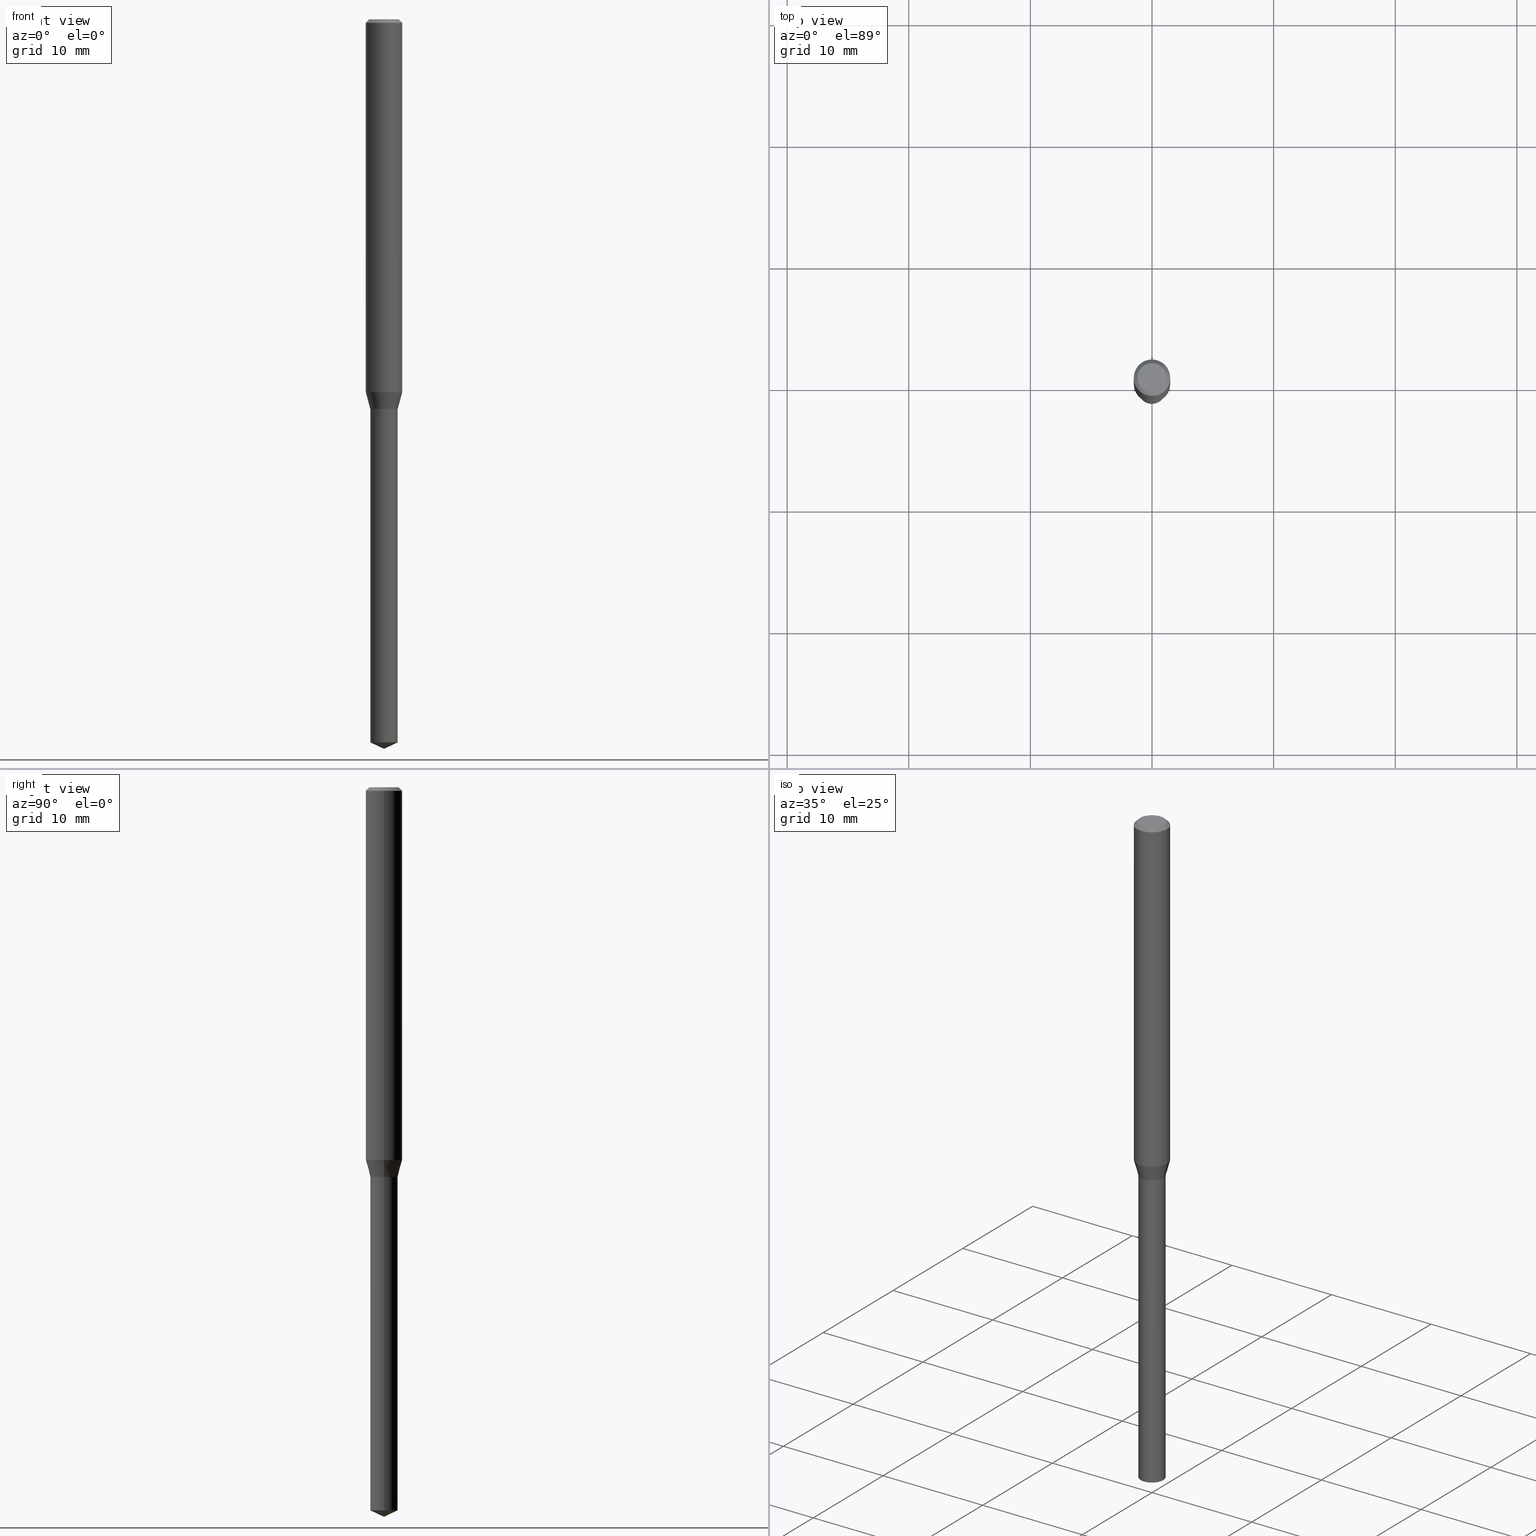
[diagram: canonical four-view strip — front | top / right | iso, engineering-drawing reading convention]
A machine part, canonical four-view strip (front | top / right | iso — engineering-drawing reading convention). The complete STEP part file that produces these views, byte-faithful:
ISO-10303-21;
HEADER;
FILE_DESCRIPTION (( 'STEP AP203' ),
    '1' );
FILE_NAME ('08380.STEP',
    '2024-04-24T14:44:57',
    ( '' ),
    ( '' ),
    'SwSTEP 2.0',
    'SolidWorks 2023',
    '' );
FILE_SCHEMA (( 'CONFIG_CONTROL_DESIGN' ));
ENDSEC;

DATA;
#1 = DIRECTION ( 'NONE',  ( -1.000000000000000000, 6.982962677686265922E-15, -4.876176775795935793E-29 ) ) ;
#2 = VERTEX_POINT ( 'NONE', #42 ) ;
#3 = EDGE_CURVE ( 'NONE', #76, #490, #270, .T. ) ;
#4 = CARTESIAN_POINT ( 'NONE',  ( 3.118950915408523626E-29, -4.453035299560548797E-15, -1.275400000000000311 ) ) ;
#5 = VERTEX_POINT ( 'NONE', #460 ) ;
#6 = DIRECTION ( 'NONE',  ( 1.000000000000000000, -6.982962677686266711E-15, 0.000000000000000000 ) ) ;
#7 = ORIENTED_EDGE ( 'NONE', *, *, #439, .T. ) ;
#8 = DIRECTION ( 'NONE',  ( -2.445468806185136597E-29, 3.491481338843145583E-15, 1.000000000000000000 ) ) ;
#9 = DIRECTION ( 'NONE',  ( -2.445468806185136877E-29, 3.491481338843145188E-15, 1.000000000000000000 ) ) ;
#10 = DIRECTION ( 'NONE',  ( -2.445468806185136597E-29, 3.491481338843145583E-15, 1.000000000000000000 ) ) ;
#11 = ADVANCED_FACE ( 'NONE', ( #200 ), #452, .T. ) ;
#12 = CARTESIAN_POINT ( 'NONE',  ( 3.118950915408523626E-29, -4.453035299560548797E-15, -1.275400000000000311 ) ) ;
#13 = FACE_OUTER_BOUND ( 'NONE', #225, .T. ) ;
#14 = CONICAL_SURFACE ( 'NONE', #274, 84.42940631927434936, 1.134464013796316006 ) ;
#15 = AXIS2_PLACEMENT_3D ( 'NONE', #352, #10, #151 ) ;
#16 = CARTESIAN_POINT ( 'NONE',  ( 0.04379999999999999866, -4.758889064843207266E-15, -1.275400000000000311 ) ) ;
#17 = MECHANICAL_CONTEXT ( 'NONE', #349, 'mechanical' ) ;
#18 = DIRECTION ( 'NONE',  ( -2.445468806185136597E-29, 3.491481338843145583E-15, 1.000000000000000000 ) ) ;
#19 = COORDINATED_UNIVERSAL_TIME_OFFSET ( 5, 0, .BEHIND. ) ;
#20 = DIRECTION ( 'NONE',  ( 1.000000000000000000, -6.982962677686269077E-15, 0.000000000000000000 ) ) ;
#21 = PERSON_AND_ORGANIZATION_ROLE ( 'creator' ) ;
#22 = AXIS2_PLACEMENT_3D ( 'NONE', #422, #188, #83 ) ;
#23 = CARTESIAN_POINT ( 'NONE',  ( 3.118950915408523626E-29, -4.453035299560548797E-15, -1.275400000000000311 ) ) ;
#24 = PERSON_AND_ORGANIZATION_ROLE ( 'classification_officer' ) ;
#25 = EDGE_CURVE ( 'NONE', #148, #76, #177, .T. ) ;
#26 = CARTESIAN_POINT ( 'NONE',  ( 3.118950915408523626E-29, -4.453035299560548797E-15, -1.275400000000000311 ) ) ;
#27 = ORIENTED_EDGE ( 'NONE', *, *, #304, .T. ) ;
#28 = APPROVAL_DATE_TIME ( #216, #135 ) ;
#29 = DIRECTION ( 'NONE',  ( 1.000000000000000000, -6.982962677686271444E-15, 0.000000000000000000 ) ) ;
#30 = ORIENTED_EDGE ( 'NONE', *, *, #208, .F. ) ;
#31 = PLANE ( 'NONE',  #246 ) ;
#32 = AXIS2_PLACEMENT_3D ( 'NONE', #440, #415, #71 ) ;
#33 = VECTOR ( 'NONE', #116, 39.37007874015748854 ) ;
#34 = ORIENTED_EDGE ( 'NONE', *, *, #479, .T. ) ;
#35 = ADVANCED_FACE ( 'NONE', ( #275 ), #462, .T. ) ;
#36 = VERTEX_POINT ( 'NONE', #129 ) ;
#37 = ORIENTED_EDGE ( 'NONE', *, *, #439, .F. ) ;
#38 = VECTOR ( 'NONE', #171, 39.37007874015748143 ) ;
#39 = LOCAL_TIME ( 10, 44, 57.00000000000000000, #19 ) ;
#40 = DIRECTION ( 'NONE',  ( -2.445468806185136597E-29, 3.491481338843145583E-15, 1.000000000000000000 ) ) ;
#41 = ADVANCED_FACE ( 'NONE', ( #464 ), #240, .F. ) ;
#42 = CARTESIAN_POINT ( 'NONE',  ( 0.04430000000000001298, -4.715943844375435912E-15, -1.262100000000000222 ) ) ;
#43 =( CONVERSION_BASED_UNIT ( 'INCH', #317 ) LENGTH_UNIT ( ) NAMED_UNIT ( #172 ) );
#44 = ORIENTED_EDGE ( 'NONE', *, *, #253, .F. ) ;
#45 = EDGE_LOOP ( 'NONE', ( #30, #272, #268, #173 ) ) ;
#46 = EDGE_CURVE ( 'NONE', #5, #331, #423, .T. ) ;
#47 = DIRECTION ( 'NONE',  ( -2.445468806185136597E-29, 3.491481338843145583E-15, 1.000000000000000000 ) ) ;
#48 = ORIENTED_EDGE ( 'NONE', *, *, #125, .F. ) ;
#49 = DIRECTION ( 'NONE',  ( 1.000000000000000000, -6.982962677686271444E-15, 0.000000000000000000 ) ) ;
#50 = CARTESIAN_POINT ( 'NONE',  ( -0.04429999999999999910, -5.999124164633942099E-15, -1.275400000000000311 ) ) ;
#51 = CARTESIAN_POINT ( 'NONE',  ( 5.776197320209293305E-29, -8.246878922347511025E-15, -2.362000000000000099 ) ) ;
#52 = VECTOR ( 'NONE', #55, 39.37007874015748143 ) ;
#53 = DIRECTION ( 'NONE',  ( -2.445468806185136597E-29, 3.491481338843145583E-15, 1.000000000000000000 ) ) ;
#54 = SECURITY_CLASSIFICATION_LEVEL ( 'unclassified' ) ;
#55 = DIRECTION ( 'NONE',  ( -0.7071067811865453523, 2.468850131082234184E-15, -0.7071067811865496822 ) ) ;
#56 = PRODUCT ( '08380', '08380', '', ( #17 ) ) ;
#57 = DIRECTION ( 'NONE',  ( -2.445468806185136597E-29, 3.491481338843145583E-15, 1.000000000000000000 ) ) ;
#58 = APPROVAL_STATUS ( 'not_yet_approved' ) ;
#59 = CIRCLE ( 'NONE', #167, 0.04429999999999999910 ) ;
#60 = CC_DESIGN_APPROVAL ( #147, ( #108 ) ) ;
#61 = CARTESIAN_POINT ( 'NONE',  ( -0.04379999999999999866, -4.141817581297625270E-15, -1.275400000000000311 ) ) ;
#62 = PRODUCT_DEFINITION_SHAPE ( 'NONE', 'NONE',  #108 ) ;
#63 = CALENDAR_DATE ( 2024, 24, 4 ) ;
#64 = CYLINDRICAL_SURFACE ( 'NONE', #211, 0.05905000000000007465 ) ;
#65 = EDGE_CURVE ( 'NONE', #2, #490, #235, .T. ) ;
#66 = CARTESIAN_POINT ( 'NONE',  ( 3.118950915408523626E-29, -4.453035299560548797E-15, -1.275400000000000311 ) ) ;
#67 = VERTEX_POINT ( 'NONE', #210 ) ;
#68 = CC_DESIGN_DATE_AND_TIME_ASSIGNMENT ( #128, #95, ( #108 ) ) ;
#69 = ORIENTED_EDGE ( 'NONE', *, *, #238, .T. ) ;
#70 = VERTEX_POINT ( 'NONE', #466 ) ;
#71 = DIRECTION ( 'NONE',  ( -1.000000000000000000, 6.982962677686266711E-15, 0.000000000000000000 ) ) ;
#72 = VERTEX_POINT ( 'NONE', #51 ) ;
#73 = CIRCLE ( 'NONE', #245, 0.05905000000000015098 ) ;
#74 = EDGE_CURVE ( 'NONE', #36, #148, #314, .T. ) ;
#75 = CARTESIAN_POINT ( 'NONE',  ( 0.05904999999999999832, -4.463468013801466955E-16, -0.01181000000000007044 ) ) ;
#76 = VERTEX_POINT ( 'NONE', #162 ) ;
#77 = CARTESIAN_POINT ( 'NONE',  ( -0.04430000000000001298, -4.114173646380807622E-15, -1.262100000000000222 ) ) ;
#78 = CARTESIAN_POINT ( 'NONE',  ( -0.04430000000000001992, 3.147704319417245239E-16, -2.179088244982924535E-30 ) ) ;
#79 = CARTESIAN_POINT ( 'NONE',  ( 5.776197320209293305E-29, -8.246878922347511025E-15, -2.362000000000000099 ) ) ;
#80 = ORIENTED_EDGE ( 'NONE', *, *, #65, .T. ) ;
#81 = CIRCLE ( 'NONE', #139, 0.04724000000000000421 ) ;
#82 = CC_DESIGN_APPROVAL ( #135, ( #213 ) ) ;
#83 = DIRECTION ( 'NONE',  ( 1.000000000000000000, -6.982962677686267499E-15, 4.876176775795936353E-29 ) ) ;
#84 = CYLINDRICAL_SURFACE ( 'NONE', #438, 0.04429999999999999910 ) ;
#85 = DIRECTION ( 'NONE',  ( -0.2588190451025211281, 5.211531920934547886E-15, 0.9659258262890679791 ) ) ;
#86 = DIRECTION ( 'NONE',  ( 1.000000000000000000, -6.982962677686266711E-15, 0.000000000000000000 ) ) ;
#87 = ADVANCED_FACE ( 'NONE', ( #284 ), #84, .T. ) ;
#88 = DIRECTION ( 'NONE',  ( -2.445468806185136597E-29, 3.491481338843145583E-15, 1.000000000000000000 ) ) ;
#89 = CIRCLE ( 'NONE', #183, 0.05904999999999999832 ) ;
#90 = PERSON_AND_ORGANIZATION ( #480, #463 ) ;
#91 = AXIS2_PLACEMENT_3D ( 'NONE', #461, #119, #388 ) ;
#92 = CC_DESIGN_PERSON_AND_ORGANIZATION_ASSIGNMENT ( #369, #255, ( #227 ) ) ;
#93 = CARTESIAN_POINT ( 'NONE',  ( 3.086426180286261161E-29, -4.406598597753934435E-15, -1.262100000000000222 ) ) ;
#94 = CARTESIAN_POINT ( 'NONE',  ( 3.118950915408523626E-29, -4.453035299560548797E-15, -1.275400000000000311 ) ) ;
#95 = DATE_TIME_ROLE ( 'creation_date' ) ;
#96 = DIRECTION ( 'NONE',  ( 2.445468806185136597E-29, -3.491481338843145583E-15, -1.000000000000000000 ) ) ;
#97 = AXIS2_PLACEMENT_3D ( 'NONE', #358, #57, #250 ) ;
#98 = CARTESIAN_POINT ( 'NONE',  ( 0.05904999999999999832, -4.535783407291118600E-16, -0.01181000000000007044 ) ) ;
#99 = VERTEX_POINT ( 'NONE', #204 ) ;
#100 = DIRECTION ( 'NONE',  ( 1.000000000000000000, -6.982962677686269077E-15, 0.000000000000000000 ) ) ;
#101 = EDGE_LOOP ( 'NONE', ( #413, #348, #417, #146 ) ) ;
#102 = ADVANCED_BREP_SHAPE_REPRESENTATION ( '08380', ( #195, #362, #122 ), #112 ) ;
#103 = VECTOR ( 'NONE', #333, 39.37007874015748143 ) ;
#104 = ORIENTED_EDGE ( 'NONE', *, *, #141, .T. ) ;
#105 = ADVANCED_FACE ( 'NONE', ( #198 ), #318, .T. ) ;
#106 = DIRECTION ( 'NONE',  ( -0.7071067811868312347, 7.493145998871379679E-15, 0.7071067811862637997 ) ) ;
#107 = ORIENTED_EDGE ( 'NONE', *, *, #208, .T. ) ;
#108 = PRODUCT_DEFINITION ( 'UNKNOWN', '', #227, #197 ) ;
#109 = CARTESIAN_POINT ( 'NONE',  ( 2.951808626249396333E-29, -4.214400407937874930E-15, -1.207052250588358744 ) ) ;
#110 = EDGE_LOOP ( 'NONE', ( #419, #442, #311, #104 ) ) ;
#111 = CONICAL_SURFACE ( 'NONE', #392, 0.05904999999999999832, 0.7853981633974452814 ) ;
#112 =( GEOMETRIC_REPRESENTATION_CONTEXT ( 3 ) GLOBAL_UNCERTAINTY_ASSIGNED_CONTEXT ( ( #280 ) ) GLOBAL_UNIT_ASSIGNED_CONTEXT ( ( #43, #455, #320 ) ) REPRESENTATION_CONTEXT ( 'NONE', 'WORKASPACE' ) );
#113 = CYLINDRICAL_SURFACE ( 'NONE', #276, 0.04430000000000001992 ) ;
#114 = EDGE_CURVE ( 'NONE', #67, #187, #222, .T. ) ;
#115 = VERTEX_POINT ( 'NONE', #166 ) ;
#116 = DIRECTION ( 'NONE',  ( 0.2588190451025211281, 1.565188264969622954E-15, 0.9659258262890679791 ) ) ;
#117 = EDGE_CURVE ( 'NONE', #381, #5, #81, .T. ) ;
#118 = VERTEX_POINT ( 'NONE', #50 ) ;
#119 = DIRECTION ( 'NONE',  ( -2.445468806185136597E-29, 3.491481338843145583E-15, 1.000000000000000000 ) ) ;
#120 = CARTESIAN_POINT ( 'NONE',  ( -9.050210213589845843E-28, 1.292130163076976058E-13, 37.00807874015747956 ) ) ;
#121 = AXIS2_PLACEMENT_3D ( 'NONE', #12, #160, #328 ) ;
#122 = AXIS2_PLACEMENT_3D ( 'NONE', #470, #436, #475 ) ;
#123 = DIRECTION ( 'NONE',  ( -2.445468806185136597E-29, 3.491481338843145583E-15, 1.000000000000000000 ) ) ;
#124 = CARTESIAN_POINT ( 'NONE',  ( 3.086426180286261161E-29, -4.406598597753934435E-15, -1.262100000000000222 ) ) ;
#125 = EDGE_CURVE ( 'NONE', #99, #118, #364, .T. ) ;
#126 = CARTESIAN_POINT ( 'NONE',  ( 0.04430000000000001298, -4.715943844375435912E-15, -1.262100000000000222 ) ) ;
#127 = DIRECTION ( 'NONE',  ( -2.445468806185136597E-29, 3.491481338843145583E-15, 1.000000000000000000 ) ) ;
#128 = DATE_AND_TIME ( #332, #179 ) ;
#129 = CARTESIAN_POINT ( 'NONE',  ( 0.04379999999999999866, -4.758889064843207266E-15, -1.275400000000000311 ) ) ;
#130 = PERSON_AND_ORGANIZATION ( #480, #463 ) ;
#131 = CIRCLE ( 'NONE', #402, 0.04430000000000001992 ) ;
#132 = EDGE_CURVE ( 'NONE', #72, #187, #397, .T. ) ;
#133 = DIRECTION ( 'NONE',  ( 1.000000000000000000, -6.982962677686269077E-15, 0.000000000000000000 ) ) ;
#134 = APPLICATION_PROTOCOL_DEFINITION ( 'international standard', 'config_control_design', 1994, #349 ) ;
#135 = APPROVAL ( #137, 'UNSPECIFIED' ) ;
#136 = DIRECTION ( 'NONE',  ( 1.000000000000000000, -6.982962677686266711E-15, 0.000000000000000000 ) ) ;
#137 = APPROVAL_STATUS ( 'not_yet_approved' ) ;
#138 = LINE ( 'NONE', #370, #429 ) ;
#139 = AXIS2_PLACEMENT_3D ( 'NONE', #324, #127, #281 ) ;
#140 = PLANE ( 'NONE',  #334 ) ;
#141 = EDGE_CURVE ( 'NONE', #331, #306, #400, .T. ) ;
#142 = APPLICATION_CONTEXT ( 'configuration controlled 3d designs of mechanical parts and assemblies' ) ;
#143 = CARTESIAN_POINT ( 'NONE',  ( 5.725680221347117002E-29, -8.174753893590783463E-15, -2.341342570743733642 ) ) ;
#144 = EDGE_LOOP ( 'NONE', ( #34, #456 ) ) ;
#145 = CIRCLE ( 'NONE', #294, 0.04724000000000000421 ) ;
#146 = ORIENTED_EDGE ( 'NONE', *, *, #205, .F. ) ;
#147 = APPROVAL ( #58, 'UNSPECIFIED' ) ;
#148 = VERTEX_POINT ( 'NONE', #353 ) ;
#149 = DIRECTION ( 'NONE',  ( -2.445468806185136597E-29, 3.491481338843145583E-15, 1.000000000000000000 ) ) ;
#150 = ORIENTED_EDGE ( 'NONE', *, *, #382, .F. ) ;
#151 = DIRECTION ( 'NONE',  ( 1.000000000000000000, -6.982962677686266711E-15, 0.000000000000000000 ) ) ;
#152 = CIRCLE ( 'NONE', #267, 0.04379999999999999866 ) ;
#153 = ORIENTED_EDGE ( 'NONE', *, *, #379, .F. ) ;
#154 = DIRECTION ( 'NONE',  ( -0.9063077870366507138, 7.915267918739014631E-15, 0.4226182617406978315 ) ) ;
#155 = ORIENTED_EDGE ( 'NONE', *, *, #389, .F. ) ;
#156 = FACE_OUTER_BOUND ( 'NONE', #458, .T. ) ;
#157 = DIRECTION ( 'NONE',  ( -2.445468806185136597E-29, 3.491481338843145583E-15, 1.000000000000000000 ) ) ;
#158 = CARTESIAN_POINT ( 'NONE',  ( 8.265746106709734507E-48, -1.180129479067563789E-33, -3.380025165646692144E-19 ) ) ;
#159 = ADVANCED_FACE ( 'NONE', ( #164 ), #372, .T. ) ;
#160 = DIRECTION ( 'NONE',  ( -2.445468806185136597E-29, 3.491481338843145583E-15, 1.000000000000000000 ) ) ;
#161 = CONICAL_SURFACE ( 'NONE', #347, 0.04379999999999999866, 0.7853981633978495136 ) ;
#162 = CARTESIAN_POINT ( 'NONE',  ( -0.04430000000000001992, -4.114173646380807622E-15, -1.274900000000000588 ) ) ;
#163 = APPROVAL ( #251, 'UNSPECIFIED' ) ;
#164 = FACE_OUTER_BOUND ( 'NONE', #401, .T. ) ;
#165 = PERSON_AND_ORGANIZATION ( #480, #463 ) ;
#166 = CARTESIAN_POINT ( 'NONE',  ( 0.05905000000000015098, -4.626744354055249850E-15, -1.207052250588358744 ) ) ;
#167 = AXIS2_PLACEMENT_3D ( 'NONE', #23, #330, #298 ) ;
#168 = LOCAL_TIME ( 10, 44, 57.00000000000000000, #289 ) ;
#169 = DIRECTION ( 'NONE',  ( -1.000000000000000000, 6.982962677686265922E-15, -4.876176775795935793E-29 ) ) ;
#170 = DATE_AND_TIME ( #282, #184 ) ;
#171 = DIRECTION ( 'NONE',  ( -2.445468806185136877E-29, 3.491481338843145188E-15, 1.000000000000000000 ) ) ;
#172 = DIMENSIONAL_EXPONENTS ( 1.000000000000000000, 0.000000000000000000, 0.000000000000000000, 0.000000000000000000, 0.000000000000000000, 0.000000000000000000, 0.000000000000000000 ) ;
#173 = ORIENTED_EDGE ( 'NONE', *, *, #241, .F. ) ;
#174 = DIRECTION ( 'NONE',  ( 1.000000000000000000, -6.982962677686257244E-15, 0.000000000000000000 ) ) ;
#175 = EDGE_CURVE ( 'NONE', #451, #76, #448, .T. ) ;
#176 = ORIENTED_EDGE ( 'NONE', *, *, #224, .F. ) ;
#177 = CIRCLE ( 'NONE', #260, 0.04430000000000001992 ) ;
#178 = AXIS2_PLACEMENT_3D ( 'NONE', #124, #157, #86 ) ;
#179 = LOCAL_TIME ( 10, 44, 57.00000000000000000, #359 ) ;
#180 = DIRECTION ( 'NONE',  ( 1.000000000000000000, -6.982962677686266711E-15, 4.876176775795936353E-29 ) ) ;
#181 = ADVANCED_FACE ( 'NONE', ( #186 ), #161, .T. ) ;
#182 = ORIENTED_EDGE ( 'NONE', *, *, #327, .F. ) ;
#183 = AXIS2_PLACEMENT_3D ( 'NONE', #226, #40, #136 ) ;
#184 = LOCAL_TIME ( 10, 44, 57.00000000000000000, #357 ) ;
#185 = ORIENTED_EDGE ( 'NONE', *, *, #241, .T. ) ;
#186 = FACE_OUTER_BOUND ( 'NONE', #405, .T. ) ;
#187 = VERTEX_POINT ( 'NONE', #341 ) ;
#188 = DIRECTION ( 'NONE',  ( -2.445468806185136597E-29, 3.491481338843145583E-15, 1.000000000000000000 ) ) ;
#189 = ORIENTED_EDGE ( 'NONE', *, *, #319, .F. ) ;
#190 = DIRECTION ( 'NONE',  ( 1.000000000000000000, -6.982962677686267499E-15, 4.876176775795936353E-29 ) ) ;
#191 = ORIENTED_EDGE ( 'NONE', *, *, #132, .T. ) ;
#192 = VECTOR ( 'NONE', #85, 39.37007874015748854 ) ;
#193 = DIRECTION ( 'NONE',  ( 1.000000000000000000, -6.982962677686257244E-15, 0.000000000000000000 ) ) ;
#194 = EDGE_LOOP ( 'NONE', ( #262, #291, #176 ) ) ;
#195 = MANIFOLD_SOLID_BREP ( 'Body-Move/Copy2[1]', #201 ) ;
#196 = CARTESIAN_POINT ( 'NONE',  ( -0.04430000000000001298, -4.091828165812210010E-15, -1.262100000000000222 ) ) ;
#197 = DESIGN_CONTEXT ( 'detailed design', #142, 'design' ) ;
#198 = FACE_OUTER_BOUND ( 'NONE', #215, .T. ) ;
#199 =( LENGTH_UNIT ( ) NAMED_UNIT ( * ) SI_UNIT ( $, .METRE. ) );
#200 = FACE_OUTER_BOUND ( 'NONE', #302, .T. ) ;
#201 = CLOSED_SHELL ( 'NONE', ( #87, #35, #230, #408, #283 ) ) ;
#202 = APPROVAL_PERSON_ORGANIZATION ( #329, #135, #293 ) ;
#203 = APPROVAL_ROLE ( '' ) ;
#204 = CARTESIAN_POINT ( 'NONE',  ( 0.04429999999999999910, -4.762380546182051062E-15, -1.275400000000000311 ) ) ;
#205 = EDGE_CURVE ( 'NONE', #148, #2, #221, .T. ) ;
#206 = PERSON_AND_ORGANIZATION ( #480, #463 ) ;
#207 = DIRECTION ( 'NONE',  ( -2.445468806185136597E-29, 3.491481338843145583E-15, 1.000000000000000000 ) ) ;
#208 = EDGE_CURVE ( 'NONE', #67, #118, #138, .T. ) ;
#209 = PERSON_AND_ORGANIZATION_ROLE ( 'design_owner' ) ;
#210 = CARTESIAN_POINT ( 'NONE',  ( -0.04430000000000000604, -7.859983461649060616E-15, -2.341342570743733642 ) ) ;
#211 = AXIS2_PLACEMENT_3D ( 'NONE', #292, #295, #180 ) ;
#212 = DATE_AND_TIME ( #247, #394 ) ;
#213 = SECURITY_CLASSIFICATION ( '', '', #54 ) ;
#214 = LINE ( 'NONE', #406, #103 ) ;
#215 = EDGE_LOOP ( 'NONE', ( #236, #7, #69, #344 ) ) ;
#216 = DATE_AND_TIME ( #63, #39 ) ;
#217 = EDGE_CURVE ( 'NONE', #381, #306, #257, .T. ) ;
#218 = FACE_OUTER_BOUND ( 'NONE', #259, .T. ) ;
#219 = EDGE_LOOP ( 'NONE', ( #374, #107, #48, #264 ) ) ;
#220 = ADVANCED_FACE ( 'NONE', ( #376 ), #64, .T. ) ;
#221 = LINE ( 'NONE', #363, #454 ) ;
#222 = CIRCLE ( 'NONE', #301, 0.04429999999999999910 ) ;
#223 = ORIENTED_EDGE ( 'NONE', *, *, #205, .T. ) ;
#224 = EDGE_CURVE ( 'NONE', #187, #67, #489, .T. ) ;
#225 = EDGE_LOOP ( 'NONE', ( #80, #300, #44, #351 ) ) ;
#226 = CARTESIAN_POINT ( 'NONE',  ( 2.888098660104663766E-31, -4.123439461173779647E-17, -0.01181000000000007044 ) ) ;
#227 = PRODUCT_DEFINITION_FORMATION_WITH_SPECIFIED_SOURCE ( 'ANY', '', #56, .NOT_KNOWN. ) ;
#228 = EDGE_LOOP ( 'NONE', ( #380, #385, #449, #447 ) ) ;
#229 = DIRECTION ( 'NONE',  ( 1.000000000000000000, -6.982962677686257244E-15, 0.000000000000000000 ) ) ;
#230 = ADVANCED_FACE ( 'NONE', ( #218 ), #14, .T. ) ;
#231 = ORIENTED_EDGE ( 'NONE', *, *, #175, .T. ) ;
#232 = CYLINDRICAL_SURFACE ( 'NONE', #91, 0.04429999999999999910 ) ;
#233 = ORIENTED_EDGE ( 'NONE', *, *, #355, .T. ) ;
#234 = CARTESIAN_POINT ( 'NONE',  ( 3.086426180286261161E-29, -4.406598597753934435E-15, -1.262100000000000222 ) ) ;
#235 = CIRCLE ( 'NONE', #178, 0.04430000000000001298 ) ;
#236 = ORIENTED_EDGE ( 'NONE', *, *, #313, .F. ) ;
#237 = CONICAL_SURFACE ( 'NONE', #15, 0.04430000000000001298, 0.2617993877991498519 ) ;
#238 = EDGE_CURVE ( 'NONE', #115, #306, #214, .T. ) ;
#239 = DIRECTION ( 'NONE',  ( -2.445468806185136597E-29, 3.491481338843145583E-15, 1.000000000000000000 ) ) ;
#240 = PLANE ( 'NONE',  #325 ) ;
#241 = EDGE_CURVE ( 'NONE', #118, #99, #59, .T. ) ;
#242 = CARTESIAN_POINT ( 'NONE',  ( 3.118950915408523626E-29, -4.453035299560548797E-15, -1.275400000000000311 ) ) ;
#243 = ADVANCED_FACE ( 'NONE', ( #263 ), #31, .F. ) ;
#244 = DIRECTION ( 'NONE',  ( 0.9063077870366507138, -4.853149677051390623E-15, 0.4226182617406978315 ) ) ;
#245 = AXIS2_PLACEMENT_3D ( 'NONE', #109, #149, #29 ) ;
#246 = AXIS2_PLACEMENT_3D ( 'NONE', #305, #335, #1 ) ;
#247 = CALENDAR_DATE ( 2024, 24, 4 ) ;
#248 = CARTESIAN_POINT ( 'NONE',  ( 0.000000000000000000, 0.000000000000000000, 0.000000000000000000 ) ) ;
#249 = PERSON_AND_ORGANIZATION ( #480, #463 ) ;
#250 = DIRECTION ( 'NONE',  ( 1.000000000000000000, -6.982962677686266711E-15, 0.000000000000000000 ) ) ;
#251 = APPROVAL_STATUS ( 'not_yet_approved' ) ;
#252 = CARTESIAN_POINT ( 'NONE',  ( -0.05905000000000007465, 4.195754854663396902E-16, -2.904631170795525395E-30 ) ) ;
#253 = EDGE_CURVE ( 'NONE', #115, #70, #73, .T. ) ;
#254 = AXIS2_PLACEMENT_3D ( 'NONE', #143, #437, #100 ) ;
#255 = PERSON_AND_ORGANIZATION_ROLE ( 'creator' ) ;
#256 = CC_DESIGN_APPROVAL ( #163, ( #227 ) ) ;
#257 = LINE ( 'NONE', #75, #326 ) ;
#258 = DIRECTION ( 'NONE',  ( 0.7071067811865453523, -7.319954787623248157E-15, -0.7071067811865496822 ) ) ;
#259 = EDGE_LOOP ( 'NONE', ( #150, #191, #337 ) ) ;
#260 = AXIS2_PLACEMENT_3D ( 'NONE', #396, #393, #316 ) ;
#261 = VECTOR ( 'NONE', #474, 39.37007874015748143 ) ;
#262 = ORIENTED_EDGE ( 'NONE', *, *, #132, .F. ) ;
#263 = FACE_OUTER_BOUND ( 'NONE', #144, .T. ) ;
#264 = ORIENTED_EDGE ( 'NONE', *, *, #411, .F. ) ;
#265 = ADVANCED_FACE ( 'NONE', ( #450 ), #111, .T. ) ;
#266 = DIRECTION ( 'NONE',  ( 1.000000000000000000, -6.982962677686266711E-15, 0.000000000000000000 ) ) ;
#267 = AXIS2_PLACEMENT_3D ( 'NONE', #4, #271, #193 ) ;
#268 = ORIENTED_EDGE ( 'NONE', *, *, #411, .T. ) ;
#269 = LINE ( 'NONE', #126, #33 ) ;
#270 = LINE ( 'NONE', #78, #483 ) ;
#271 = DIRECTION ( 'NONE',  ( -2.445468806185136597E-29, 3.491481338843145583E-15, 1.000000000000000000 ) ) ;
#272 = ORIENTED_EDGE ( 'NONE', *, *, #114, .T. ) ;
#273 = DIRECTION ( 'NONE',  ( -2.445468806185136877E-29, 3.491481338843145188E-15, 1.000000000000000000 ) ) ;
#274 = AXIS2_PLACEMENT_3D ( 'NONE', #371, #404, #266 ) ;
#275 = FACE_OUTER_BOUND ( 'NONE', #194, .T. ) ;
#276 = AXIS2_PLACEMENT_3D ( 'NONE', #277, #47, #190 ) ;
#277 = CARTESIAN_POINT ( 'NONE',  ( 0.000000000000000000, 0.000000000000000000, 0.000000000000000000 ) ) ;
#278 = CARTESIAN_POINT ( 'NONE',  ( 5.725680221347117002E-29, -8.174753893590783463E-15, -2.341342570743733642 ) ) ;
#279 = CARTESIAN_POINT ( 'NONE',  ( -0.05904999999999999832, -1.708241915808465850E-15, -0.01181000000000007044 ) ) ;
#280 = UNCERTAINTY_MEASURE_WITH_UNIT (LENGTH_MEASURE( 1.000000000000000082E-05 ), #43, 'distance_accuracy_value', 'NONE');
#281 = DIRECTION ( 'NONE',  ( 1.000000000000000000, -6.982962677686266711E-15, 4.876185090822587894E-29 ) ) ;
#282 = CALENDAR_DATE ( 2024, 24, 4 ) ;
#283 = ADVANCED_FACE ( 'NONE', ( #486 ), #140, .F. ) ;
#284 = FACE_OUTER_BOUND ( 'NONE', #219, .T. ) ;
#285 = AXIS2_PLACEMENT_3D ( 'NONE', #420, #346, #229 ) ;
#286 = VECTOR ( 'NONE', #273, 39.37007874015748143 ) ;
#287 = SHAPE_DEFINITION_REPRESENTATION ( #62, #102 ) ;
#288 = CARTESIAN_POINT ( 'NONE',  ( -0.05904999999999999832, 3.711095515056362547E-16, -0.01181000000000007044 ) ) ;
#289 = COORDINATED_UNIVERSAL_TIME_OFFSET ( 5, 0, .BEHIND. ) ;
#290 = DIRECTION ( 'NONE',  ( 2.438088387897960049E-29, -3.491481338843145188E-15, -1.000000000000000000 ) ) ;
#291 = ORIENTED_EDGE ( 'NONE', *, *, #382, .T. ) ;
#292 = CARTESIAN_POINT ( 'NONE',  ( 0.000000000000000000, 0.000000000000000000, 0.000000000000000000 ) ) ;
#293 = APPROVAL_ROLE ( '' ) ;
#294 = AXIS2_PLACEMENT_3D ( 'NONE', #158, #123, #425 ) ;
#295 = DIRECTION ( 'NONE',  ( -2.445468806185136597E-29, 3.491481338843145583E-15, 1.000000000000000000 ) ) ;
#296 = ORIENTED_EDGE ( 'NONE', *, *, #117, .F. ) ;
#297 = ADVANCED_FACE ( 'NONE', ( #412 ), #484, .T. ) ;
#298 = DIRECTION ( 'NONE',  ( 1.000000000000000000, -6.982962677686269077E-15, 0.000000000000000000 ) ) ;
#299 = ORIENTED_EDGE ( 'NONE', *, *, #3, .F. ) ;
#300 = ORIENTED_EDGE ( 'NONE', *, *, #389, .T. ) ;
#301 = AXIS2_PLACEMENT_3D ( 'NONE', #278, #18, #20 ) ;
#302 = EDGE_LOOP ( 'NONE', ( #155, #488, #233, #37 ) ) ;
#303 = EDGE_LOOP ( 'NONE', ( #296, #435, #27, #377 ) ) ;
#304 = EDGE_CURVE ( 'NONE', #306, #331, #89, .T. ) ;
#305 = CARTESIAN_POINT ( 'NONE',  ( 4.132873053354867254E-48, -5.900647395337818946E-34, -1.690012582823346072E-19 ) ) ;
#306 = VERTEX_POINT ( 'NONE', #98 ) ;
#307 = CC_DESIGN_DATE_AND_TIME_ASSIGNMENT ( #170, #403, ( #213 ) ) ;
#308 = CC_DESIGN_SECURITY_CLASSIFICATION ( #213, ( #227 ) ) ;
#309 = ORIENTED_EDGE ( 'NONE', *, *, #175, .F. ) ;
#310 = CARTESIAN_POINT ( 'NONE',  ( 3.117728181005432506E-29, -4.451289558891128871E-15, -1.274900000000000588 ) ) ;
#311 = ORIENTED_EDGE ( 'NONE', *, *, #46, .T. ) ;
#312 = DIRECTION ( 'NONE',  ( 1.000000000000000000, -6.982962677686265922E-15, 0.000000000000000000 ) ) ;
#313 = EDGE_CURVE ( 'NONE', #70, #331, #434, .T. ) ;
#314 = LINE ( 'NONE', #16, #261 ) ;
#315 = CARTESIAN_POINT ( 'NONE',  ( 0.04724000000000000421, -3.852183633974369345E-16, -3.380025165621689721E-19 ) ) ;
#316 = DIRECTION ( 'NONE',  ( 1.000000000000000000, -6.982962677686265922E-15, 0.000000000000000000 ) ) ;
#317 = LENGTH_MEASURE_WITH_UNIT ( LENGTH_MEASURE( 0.02539999999999999897 ), #199 );
#318 = CYLINDRICAL_SURFACE ( 'NONE', #338, 0.05905000000000007465 ) ;
#319 = EDGE_CURVE ( 'NONE', #451, #36, #152, .T. ) ;
#320 =( NAMED_UNIT ( * ) SI_UNIT ( $, .STERADIAN. ) SOLID_ANGLE_UNIT ( ) );
#321 = DIRECTION ( 'NONE',  ( -2.438088387897960049E-29, 3.491481338843145188E-15, 1.000000000000000000 ) ) ;
#322 = PRODUCT_RELATED_PRODUCT_CATEGORY ( 'detail', '', ( #56 ) ) ;
#323 = APPLICATION_PROTOCOL_DEFINITION ( 'international standard', 'config_control_design', 1994, #142 ) ;
#324 = CARTESIAN_POINT ( 'NONE',  ( 8.265746106709734507E-48, -1.180129479067563789E-33, -3.380025165646692144E-19 ) ) ;
#325 = AXIS2_PLACEMENT_3D ( 'NONE', #242, #321, #469 ) ;
#326 = VECTOR ( 'NONE', #258, 39.37007874015748143 ) ;
#327 = EDGE_CURVE ( 'NONE', #36, #451, #375, .T. ) ;
#328 = DIRECTION ( 'NONE',  ( 1.000000000000000000, -6.982962677686257244E-15, 0.000000000000000000 ) ) ;
#329 = PERSON_AND_ORGANIZATION ( #480, #463 ) ;
#330 = DIRECTION ( 'NONE',  ( -2.445468806185136597E-29, 3.491481338843145583E-15, 1.000000000000000000 ) ) ;
#331 = VERTEX_POINT ( 'NONE', #279 ) ;
#332 = CALENDAR_DATE ( 2024, 24, 4 ) ;
#333 = DIRECTION ( 'NONE',  ( -2.445468806185136877E-29, 3.491481338843145188E-15, 1.000000000000000000 ) ) ;
#334 = AXIS2_PLACEMENT_3D ( 'NONE', #26, #290, #169 ) ;
#335 = DIRECTION ( 'NONE',  ( 2.438088387897960049E-29, -3.491481338843145188E-15, -1.000000000000000000 ) ) ;
#336 = ORIENTED_EDGE ( 'NONE', *, *, #379, .T. ) ;
#337 = ORIENTED_EDGE ( 'NONE', *, *, #114, .F. ) ;
#338 = AXIS2_PLACEMENT_3D ( 'NONE', #248, #207, #360 ) ;
#339 = ADVANCED_FACE ( 'NONE', ( #156 ), #113, .T. ) ;
#340 = ORIENTED_EDGE ( 'NONE', *, *, #327, .T. ) ;
#341 = CARTESIAN_POINT ( 'NONE',  ( 0.04430000000000000604, -8.484099140212286517E-15, -2.341342570743733642 ) ) ;
#342 = CC_DESIGN_PERSON_AND_ORGANIZATION_ASSIGNMENT ( #165, #209, ( #56 ) ) ;
#343 = ORIENTED_EDGE ( 'NONE', *, *, #319, .T. ) ;
#344 = ORIENTED_EDGE ( 'NONE', *, *, #141, .F. ) ;
#345 = EDGE_CURVE ( 'NONE', #490, #2, #409, .T. ) ;
#346 = DIRECTION ( 'NONE',  ( -2.445468806185136597E-29, 3.491481338843145583E-15, 1.000000000000000000 ) ) ;
#347 = AXIS2_PLACEMENT_3D ( 'NONE', #66, #476, #174 ) ;
#348 = ORIENTED_EDGE ( 'NONE', *, *, #3, .T. ) ;
#349 = APPLICATION_CONTEXT ( 'configuration controlled 3d designs of mechanical parts and assemblies' ) ;
#350 = DIRECTION ( 'NONE',  ( -2.445468806185136597E-29, 3.491481338843145583E-15, 1.000000000000000000 ) ) ;
#351 = ORIENTED_EDGE ( 'NONE', *, *, #355, .F. ) ;
#352 = CARTESIAN_POINT ( 'NONE',  ( 3.086426180286261161E-29, -4.406598597753934435E-15, -1.262100000000000222 ) ) ;
#353 = CARTESIAN_POINT ( 'NONE',  ( 0.04430000000000001992, -4.760634805512630348E-15, -1.274900000000000588 ) ) ;
#354 = CYLINDRICAL_SURFACE ( 'NONE', #22, 0.04430000000000001992 ) ;
#355 = EDGE_CURVE ( 'NONE', #2, #115, #269, .T. ) ;
#356 = DIRECTION ( 'NONE',  ( 1.000000000000000000, -6.982962677686266711E-15, 0.000000000000000000 ) ) ;
#357 = COORDINATED_UNIVERSAL_TIME_OFFSET ( 5, 0, .BEHIND. ) ;
#358 = CARTESIAN_POINT ( 'NONE',  ( 2.888098660104663766E-31, -4.123439461173779647E-17, -0.01181000000000007044 ) ) ;
#359 = COORDINATED_UNIVERSAL_TIME_OFFSET ( 5, 0, .BEHIND. ) ;
#360 = DIRECTION ( 'NONE',  ( 1.000000000000000000, -6.982962677686266711E-15, 4.876176775795936353E-29 ) ) ;
#361 = DATE_AND_TIME ( #395, #168 ) ;
#362 = MANIFOLD_SOLID_BREP ( 'Body-Move/Copy2[2]', #414 ) ;
#363 = CARTESIAN_POINT ( 'NONE',  ( 0.04430000000000001992, -3.093452466215017723E-16, 2.160146311677600784E-30 ) ) ;
#364 = CIRCLE ( 'NONE', #472, 0.04429999999999999910 ) ;
#365 = AXIS2_PLACEMENT_3D ( 'NONE', #234, #350, #6 ) ;
#366 = PERSON_AND_ORGANIZATION ( #480, #463 ) ;
#367 = DIRECTION ( 'NONE',  ( -1.000000000000000000, 6.982962677686266711E-15, 0.000000000000000000 ) ) ;
#368 = ORIENTED_EDGE ( 'NONE', *, *, #345, .F. ) ;
#369 = PERSON_AND_ORGANIZATION ( #480, #463 ) ;
#370 = CARTESIAN_POINT ( 'NONE',  ( -0.04429999999999999910, -4.138264867618825161E-15, -1.275400000000000311 ) ) ;
#371 = CARTESIAN_POINT ( 'NONE',  ( -9.050210213589845843E-28, 1.292130163076976058E-13, 37.00807874015747956 ) ) ;
#372 = CONICAL_SURFACE ( 'NONE', #121, 0.04379999999999999866, 0.7853981633978495136 ) ;
#373 = APPROVAL_PERSON_ORGANIZATION ( #90, #163, #203 ) ;
#374 = ORIENTED_EDGE ( 'NONE', *, *, #224, .T. ) ;
#375 = CIRCLE ( 'NONE', #285, 0.04379999999999999866 ) ;
#376 = FACE_OUTER_BOUND ( 'NONE', #228, .T. ) ;
#377 = ORIENTED_EDGE ( 'NONE', *, *, #46, .F. ) ;
#378 = CARTESIAN_POINT ( 'NONE',  ( -0.04379999999999999866, -4.139168354123514858E-15, -1.275400000000000311 ) ) ;
#379 = EDGE_CURVE ( 'NONE', #76, #148, #131, .T. ) ;
#380 = ORIENTED_EDGE ( 'NONE', *, *, #253, .T. ) ;
#381 = VERTEX_POINT ( 'NONE', #315 ) ;
#382 = EDGE_CURVE ( 'NONE', #72, #67, #459, .T. ) ;
#383 = LINE ( 'NONE', #196, #192 ) ;
#384 = VECTOR ( 'NONE', #106, 39.37007874015748143 ) ;
#385 = ORIENTED_EDGE ( 'NONE', *, *, #313, .T. ) ;
#386 = CARTESIAN_POINT ( 'NONE',  ( 2.951808626249396333E-29, -4.214400407937874930E-15, -1.207052250588358744 ) ) ;
#387 = DIRECTION ( 'NONE',  ( -2.445468806185136597E-29, 3.491481338843145583E-15, 1.000000000000000000 ) ) ;
#388 = DIRECTION ( 'NONE',  ( 1.000000000000000000, -6.982962677686269077E-15, 0.000000000000000000 ) ) ;
#389 = EDGE_CURVE ( 'NONE', #490, #70, #383, .T. ) ;
#390 = DIRECTION ( 'NONE',  ( 1.000000000000000000, -6.982962677686266711E-15, 0.000000000000000000 ) ) ;
#391 = CC_DESIGN_PERSON_AND_ORGANIZATION_ASSIGNMENT ( #366, #24, ( #213 ) ) ;
#392 = AXIS2_PLACEMENT_3D ( 'NONE', #399, #96, #367 ) ;
#393 = DIRECTION ( 'NONE',  ( -2.445468806185136597E-29, 3.491481338843145583E-15, 1.000000000000000000 ) ) ;
#394 = LOCAL_TIME ( 10, 44, 57.00000000000000000, #398 ) ;
#395 = CALENDAR_DATE ( 2024, 24, 4 ) ;
#396 = CARTESIAN_POINT ( 'NONE',  ( 3.117728181005432506E-29, -4.451289558891128871E-15, -1.274900000000000588 ) ) ;
#397 = LINE ( 'NONE', #428, #453 ) ;
#398 = COORDINATED_UNIVERSAL_TIME_OFFSET ( 5, 0, .BEHIND. ) ;
#399 = CARTESIAN_POINT ( 'NONE',  ( 2.888098660104663766E-31, -4.123439461173779647E-17, -0.01181000000000007044 ) ) ;
#400 = CIRCLE ( 'NONE', #97, 0.05904999999999999832 ) ;
#401 = EDGE_LOOP ( 'NONE', ( #309, #343, #443, #153 ) ) ;
#402 = AXIS2_PLACEMENT_3D ( 'NONE', #310, #8, #312 ) ;
#403 = DATE_TIME_ROLE ( 'classification_date' ) ;
#404 = DIRECTION ( 'NONE',  ( -2.445468806185136597E-29, 3.491481338843145583E-15, 1.000000000000000000 ) ) ;
#405 = EDGE_LOOP ( 'NONE', ( #340, #231, #487, #421 ) ) ;
#406 = CARTESIAN_POINT ( 'NONE',  ( 0.05905000000000007465, -4.123439461173745750E-16, 2.879382386107504074E-30 ) ) ;
#407 = EDGE_LOOP ( 'NONE', ( #182, #189 ) ) ;
#408 = ADVANCED_FACE ( 'NONE', ( #457 ), #232, .T. ) ;
#409 = CIRCLE ( 'NONE', #365, 0.04430000000000001298 ) ;
#410 = EDGE_LOOP ( 'NONE', ( #441, #185 ) ) ;
#411 = EDGE_CURVE ( 'NONE', #187, #99, #465, .T. ) ;
#412 = FACE_OUTER_BOUND ( 'NONE', #110, .T. ) ;
#413 = ORIENTED_EDGE ( 'NONE', *, *, #25, .T. ) ;
#414 = CLOSED_SHELL ( 'NONE', ( #181, #265, #220, #467, #424, #339, #11, #105, #297, #243, #41, #159 ) ) ;
#415 = DIRECTION ( 'NONE',  ( 2.445468806185136597E-29, -3.491481338843145583E-15, -1.000000000000000000 ) ) ;
#416 = VECTOR ( 'NONE', #154, 39.37007874015748143 ) ;
#417 = ORIENTED_EDGE ( 'NONE', *, *, #65, .F. ) ;
#418 = CARTESIAN_POINT ( 'NONE',  ( 0.04429999999999999910, -4.762380546182051062E-15, -1.275400000000000311 ) ) ;
#419 = ORIENTED_EDGE ( 'NONE', *, *, #217, .F. ) ;
#420 = CARTESIAN_POINT ( 'NONE',  ( 3.118950915408523626E-29, -4.453035299560548797E-15, -1.275400000000000311 ) ) ;
#421 = ORIENTED_EDGE ( 'NONE', *, *, #74, .F. ) ;
#422 = CARTESIAN_POINT ( 'NONE',  ( 0.000000000000000000, 0.000000000000000000, 0.000000000000000000 ) ) ;
#423 = LINE ( 'NONE', #288, #52 ) ;
#424 = ADVANCED_FACE ( 'NONE', ( #427 ), #354, .T. ) ;
#425 = DIRECTION ( 'NONE',  ( 1.000000000000000000, -6.982962677686266711E-15, 4.876185090822587894E-29 ) ) ;
#426 = DIRECTION ( 'NONE',  ( -2.445468806185136597E-29, 3.491481338843145583E-15, 1.000000000000000000 ) ) ;
#427 = FACE_OUTER_BOUND ( 'NONE', #101, .T. ) ;
#428 = CARTESIAN_POINT ( 'NONE',  ( 5.776197320209293305E-29, -8.246878922347511025E-15, -2.362000000000000099 ) ) ;
#429 = VECTOR ( 'NONE', #482, 39.37007874015748143 ) ;
#430 = CIRCLE ( 'NONE', #445, 0.05905000000000015098 ) ;
#431 = DIRECTION ( 'NONE',  ( 1.000000000000000000, -6.982962677686269077E-15, 0.000000000000000000 ) ) ;
#432 = CARTESIAN_POINT ( 'NONE',  ( 3.118950915408523626E-29, -4.453035299560548797E-15, -1.275400000000000311 ) ) ;
#433 = APPROVAL_DATE_TIME ( #361, #147 ) ;
#434 = LINE ( 'NONE', #252, #38 ) ;
#435 = ORIENTED_EDGE ( 'NONE', *, *, #217, .T. ) ;
#436 = DIRECTION ( 'NONE',  ( 0.000000000000000000, 0.000000000000000000, 1.000000000000000000 ) ) ;
#437 = DIRECTION ( 'NONE',  ( -2.445468806185136597E-29, 3.491481338843145583E-15, 1.000000000000000000 ) ) ;
#438 = AXIS2_PLACEMENT_3D ( 'NONE', #432, #387, #431 ) ;
#439 = EDGE_CURVE ( 'NONE', #70, #115, #430, .T. ) ;
#440 = CARTESIAN_POINT ( 'NONE',  ( 2.888098660104663766E-31, -4.123439461173779647E-17, -0.01181000000000007044 ) ) ;
#441 = ORIENTED_EDGE ( 'NONE', *, *, #125, .T. ) ;
#442 = ORIENTED_EDGE ( 'NONE', *, *, #479, .F. ) ;
#443 = ORIENTED_EDGE ( 'NONE', *, *, #74, .T. ) ;
#444 = AXIS2_PLACEMENT_3D ( 'NONE', #120, #53, #356 ) ;
#445 = AXIS2_PLACEMENT_3D ( 'NONE', #386, #239, #49 ) ;
#446 = CC_DESIGN_PERSON_AND_ORGANIZATION_ASSIGNMENT ( #206, #21, ( #108 ) ) ;
#447 = ORIENTED_EDGE ( 'NONE', *, *, #238, .F. ) ;
#448 = LINE ( 'NONE', #61, #384 ) ;
#449 = ORIENTED_EDGE ( 'NONE', *, *, #304, .F. ) ;
#450 = FACE_OUTER_BOUND ( 'NONE', #303, .T. ) ;
#451 = VERTEX_POINT ( 'NONE', #378 ) ;
#452 = CONICAL_SURFACE ( 'NONE', #471, 0.04430000000000001298, 0.2617993877991498519 ) ;
#453 = VECTOR ( 'NONE', #244, 39.37007874015748143 ) ;
#454 = VECTOR ( 'NONE', #478, 39.37007874015748143 ) ;
#455 =( NAMED_UNIT ( * ) PLANE_ANGLE_UNIT ( ) SI_UNIT ( $, .RADIAN. ) );
#456 = ORIENTED_EDGE ( 'NONE', *, *, #117, .T. ) ;
#457 = FACE_OUTER_BOUND ( 'NONE', #45, .T. ) ;
#458 = EDGE_LOOP ( 'NONE', ( #299, #336, #223, #368 ) ) ;
#459 = LINE ( 'NONE', #79, #416 ) ;
#460 = CARTESIAN_POINT ( 'NONE',  ( -0.04724000000000000421, 3.504923541997677355E-16, -3.380025165670481712E-19 ) ) ;
#461 = CARTESIAN_POINT ( 'NONE',  ( 3.118950915408523626E-29, -4.453035299560548797E-15, -1.275400000000000311 ) ) ;
#462 = CONICAL_SURFACE ( 'NONE', #444, 84.42940631927434936, 1.134464013796316006 ) ;
#463 = ORGANIZATION ( 'UNSPECIFIED', 'UNSPECIFIED', '' ) ;
#464 = FACE_OUTER_BOUND ( 'NONE', #407, .T. ) ;
#465 = LINE ( 'NONE', #418, #286 ) ;
#466 = CARTESIAN_POINT ( 'NONE',  ( -0.05905000000000015098, -3.794824922471535437E-15, -1.207052250588358744 ) ) ;
#467 = ADVANCED_FACE ( 'NONE', ( #13 ), #237, .T. ) ;
#468 = APPROVAL_DATE_TIME ( #212, #163 ) ;
#469 = DIRECTION ( 'NONE',  ( 1.000000000000000000, -6.982962677686265922E-15, 4.876176775795935793E-29 ) ) ;
#470 = CARTESIAN_POINT ( 'NONE',  ( 0.000000000000000000, 0.000000000000000000, 0.000000000000000000 ) ) ;
#471 = AXIS2_PLACEMENT_3D ( 'NONE', #93, #88, #390 ) ;
#472 = AXIS2_PLACEMENT_3D ( 'NONE', #94, #426, #133 ) ;
#473 = APPROVAL_PERSON_ORGANIZATION ( #249, #147, #477 ) ;
#474 = DIRECTION ( 'NONE',  ( 0.7071067811868312347, -2.468850131085228700E-15, 0.7071067811862637997 ) ) ;
#475 = DIRECTION ( 'NONE',  ( 1.000000000000000000, 0.000000000000000000, 0.000000000000000000 ) ) ;
#476 = DIRECTION ( 'NONE',  ( -2.445468806185136597E-29, 3.491481338843145583E-15, 1.000000000000000000 ) ) ;
#477 = APPROVAL_ROLE ( '' ) ;
#478 = DIRECTION ( 'NONE',  ( -2.445468806185136877E-29, 3.491481338843145188E-15, 1.000000000000000000 ) ) ;
#479 = EDGE_CURVE ( 'NONE', #5, #381, #145, .T. ) ;
#480 = PERSON ( 'UNSPECIFIED', 'UNSPECIFIED', 'UNSPECIFIED', ('UNSPECIFIED'), ('UNSPECIFIED'), ('UNSPECIFIED') ) ;
#481 = PERSON_AND_ORGANIZATION_ROLE ( 'design_supplier' ) ;
#482 = DIRECTION ( 'NONE',  ( -2.445468806185136877E-29, 3.491481338843145188E-15, 1.000000000000000000 ) ) ;
#483 = VECTOR ( 'NONE', #9, 39.37007874015748143 ) ;
#484 = CONICAL_SURFACE ( 'NONE', #32, 0.05904999999999999832, 0.7853981633974452814 ) ;
#485 = CC_DESIGN_PERSON_AND_ORGANIZATION_ASSIGNMENT ( #130, #481, ( #227 ) ) ;
#486 = FACE_OUTER_BOUND ( 'NONE', #410, .T. ) ;
#487 = ORIENTED_EDGE ( 'NONE', *, *, #25, .F. ) ;
#488 = ORIENTED_EDGE ( 'NONE', *, *, #345, .T. ) ;
#489 = CIRCLE ( 'NONE', #254, 0.04429999999999999910 ) ;
#490 = VERTEX_POINT ( 'NONE', #77 ) ;
ENDSEC;
END-ISO-10303-21;
